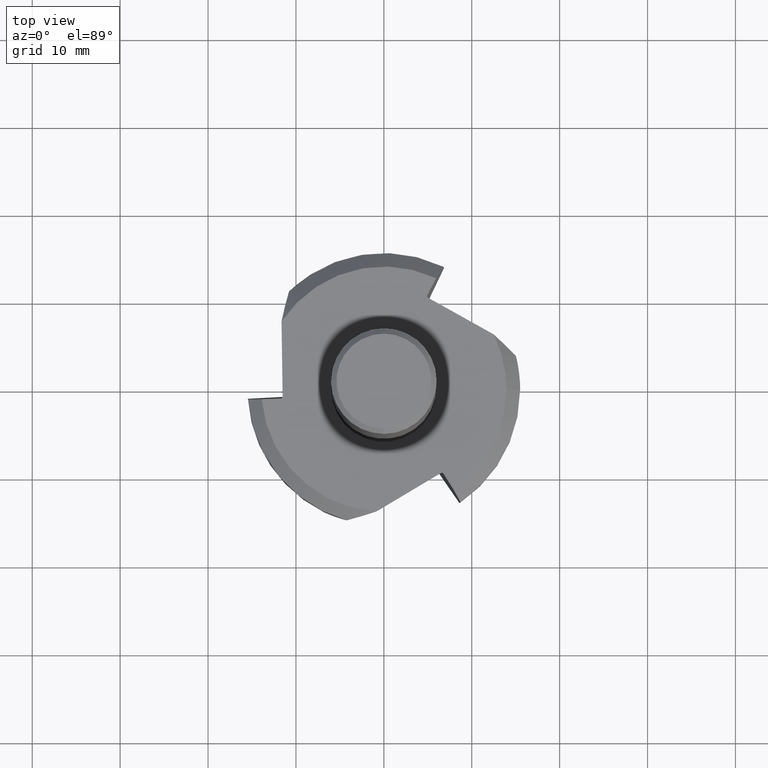
[diagram: clean part render]
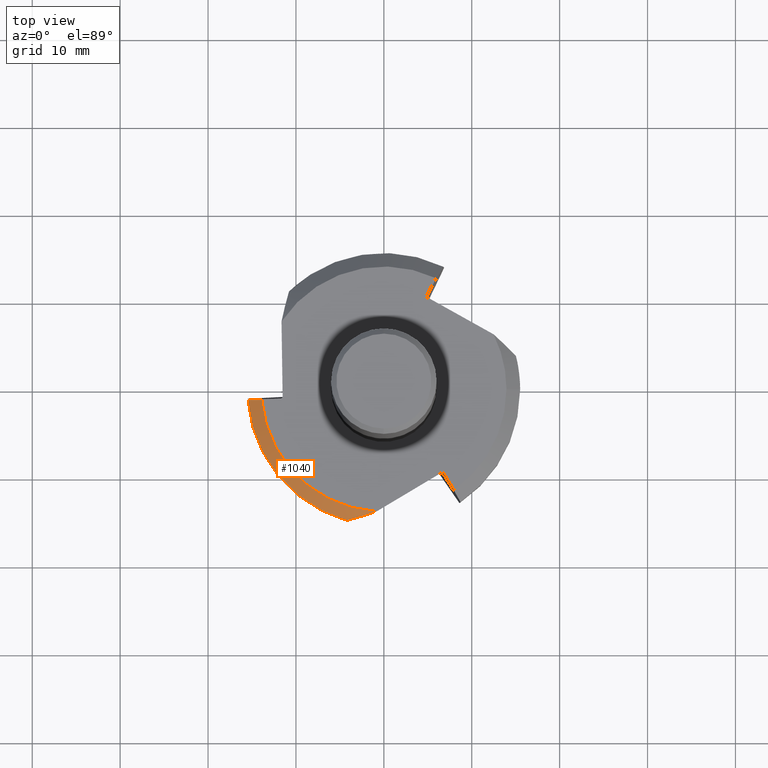
[diagram: same view with one face highlighted and labeled with its STEP entity id]
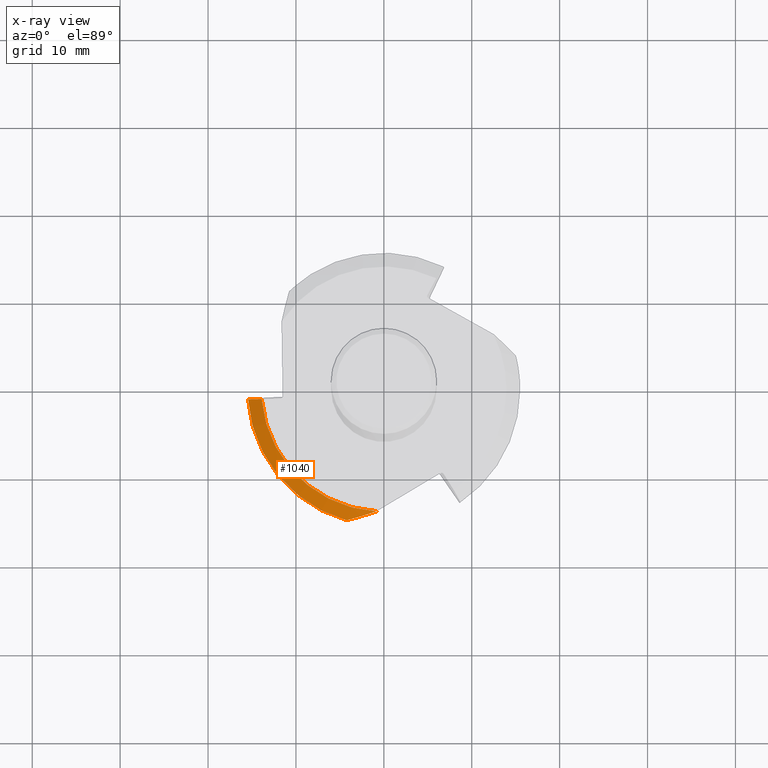
[diagram: x-ray of the same camera — body ghosted, the highlighted face saturated]
A machine part, top view. The second image highlights one B-rep face of the part: STEP entity #1040.
The next image is the same camera in x-ray: the body ghosted, the highlighted face saturated — about 0% of this face is hidden behind the body in this view.
In plain terms, the highlighted conical surface has half-angle 45 deg.
Its self-contained STEP definition (entity closure, byte-faithful):
#528=VERTEX_POINT('',#1296);
#530=EDGE_CURVE('',#596,#528,#1298,.T.);
#596=VERTEX_POINT('',#1372);
#612=EDGE_CURVE('',#528,#728,#1388,.T.);
#718=VERTEX_POINT('',#1503);
#728=VERTEX_POINT('',#1513);
#776=VERTEX_POINT('',#1568);
#878=EDGE_CURVE('',#718,#776,#1679,.T.);
#880=EDGE_CURVE('',#934,#728,#1681,.T.);
#934=VERTEX_POINT('',#1737);
#978=EDGE_CURVE('',#934,#718,#1786,.T.);
#1040=ADVANCED_FACE('',(#1854),#1855,.T.);
#1090=EDGE_CURVE('',#776,#596,#1905,.T.);
#1296=CARTESIAN_POINT('',(-13.913262148714,-1.14137477682051,-52.25));
#1298=LINE('',#2289,#2290);
#1372=CARTESIAN_POINT('',(-13.9032286108809,-1.14137381851113,-52.24));
#1388=(B_SPLINE_CURVE(2,(#2437,#2438,#2439),.UNSPECIFIED.,.F.,.F.)B_SPLINE_CURVE_WITH_KNOTS((3,3),(0.0,2.18117758817965),.UNSPECIFIED.)RATIONAL_B_SPLINE_CURVE((1.0,1.00136995294755,1.0))BOUNDED_CURVE()REPRESENTATION_ITEM('')GEOMETRIC_REPRESENTATION_ITEM()CURVE());
#1503=CARTESIAN_POINT('',(-0.860072599438167,-13.933480366502,-52.25));
#1513=CARTESIAN_POINT('',(-15.4579095598544,-1.1415042879295,-53.79));
#1568=CARTESIAN_POINT('',(-0.834633866838139,-13.9250093827016,-52.24));
#1679=(B_SPLINE_CURVE(2,(#3051,#3052,#3053),.UNSPECIFIED.,.F.,.F.)B_SPLINE_CURVE_WITH_KNOTS((3,3),(0.0,0.0286161972625445),.UNSPECIFIED.)RATIONAL_B_SPLINE_CURVE((1.0,1.00000013369402,1.0))BOUNDED_CURVE()REPRESENTATION_ITEM('')GEOMETRIC_REPRESENTATION_ITEM()CURVE());
#1681=CIRCLE('',#3062,15.5);
#1737=CARTESIAN_POINT('',(-4.23072201267804,-14.9114382690417,-53.79));
#1786=(B_SPLINE_CURVE(2,(#3376,#3377,#3378),.UNSPECIFIED.,.F.,.F.)B_SPLINE_CURVE_WITH_KNOTS((3,3),(0.0,3.83455606133557),.UNSPECIFIED.)RATIONAL_B_SPLINE_CURVE((1.0,1.00216240870794,1.0))BOUNDED_CURVE()REPRESENTATION_ITEM('')GEOMETRIC_REPRESENTATION_ITEM()CURVE());
#1854=FACE_OUTER_BOUND('',#3564,.T.);
#1855=CONICAL_SURFACE('',#3565,14.725,0.785398163397449);
#1905=CIRCLE('',#3716,13.95);
#2289=CARTESIAN_POINT('',(-13.9082453797975,-1.14137429766582,-52.245));
#2290=VECTOR('',#3973,1.0);
#2437=CARTESIAN_POINT('',(-13.913262148714,-1.14137477682051,-52.25));
#2438=CARTESIAN_POINT('',(-14.6453220995061,-1.14144463514156,-52.9796147377128));
#2439=CARTESIAN_POINT('',(-15.4579095598544,-1.1415042879295,-53.79));
#3051=CARTESIAN_POINT('',(-0.860072599438167,-13.933480366502,-52.25));
#3052=CARTESIAN_POINT('',(-0.847348952722481,-13.929247908234,-52.2449916809395));
#3053=CARTESIAN_POINT('',(-0.834633866838142,-13.9250093827016,-52.24));
#3062=AXIS2_PLACEMENT_3D('',#4407,#4408,#4409);
#3376=CARTESIAN_POINT('',(-4.23072201267804,-14.9114382690417,-53.79));
#3377=CARTESIAN_POINT('',(-2.46958356002876,-14.4688762419752,-52.8835404151083));
#3378=CARTESIAN_POINT('',(-0.860072599438101,-13.9334803665019,-52.25));
#3564=EDGE_LOOP('',(#4581,#4582,#4583,#4584,#4585,#4586));
#3565=AXIS2_PLACEMENT_3D('',#4587,#4588,#4589);
#3716=AXIS2_PLACEMENT_3D('',#4617,#4618,#4619);
#3973=DIRECTION('',(-0.708289543484883,-6.76491706575301E-005,-0.705922033948201));
#4407=CARTESIAN_POINT('',(0.0,0.0,-53.79));
#4408=DIRECTION('',(0.0,0.0,-1.0));
#4409=DIRECTION('',(-1.0,0.0,0.0));
#4581=ORIENTED_EDGE('',*,*,#878,.T.);
#4582=ORIENTED_EDGE('',*,*,#1090,.T.);
#4583=ORIENTED_EDGE('',*,*,#530,.T.);
#4584=ORIENTED_EDGE('',*,*,#612,.T.);
#4585=ORIENTED_EDGE('',*,*,#880,.F.);
#4586=ORIENTED_EDGE('',*,*,#978,.T.);
#4587=CARTESIAN_POINT('',(0.0,0.0,-53.015));
#4588=DIRECTION('',(-0.0,0.0,-1.0));
#4589=DIRECTION('',(-1.0,0.0,0.0));
#4617=CARTESIAN_POINT('',(0.0,0.0,-52.24));
#4618=DIRECTION('',(0.0,0.0,-1.0));
#4619=DIRECTION('',(-1.0,0.0,0.0));